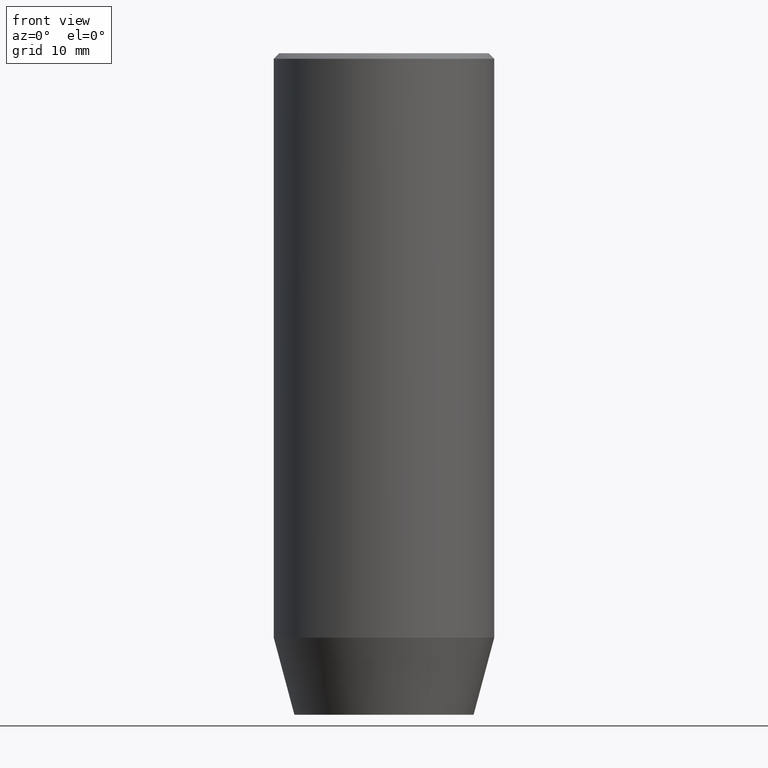
[diagram: clean part render]
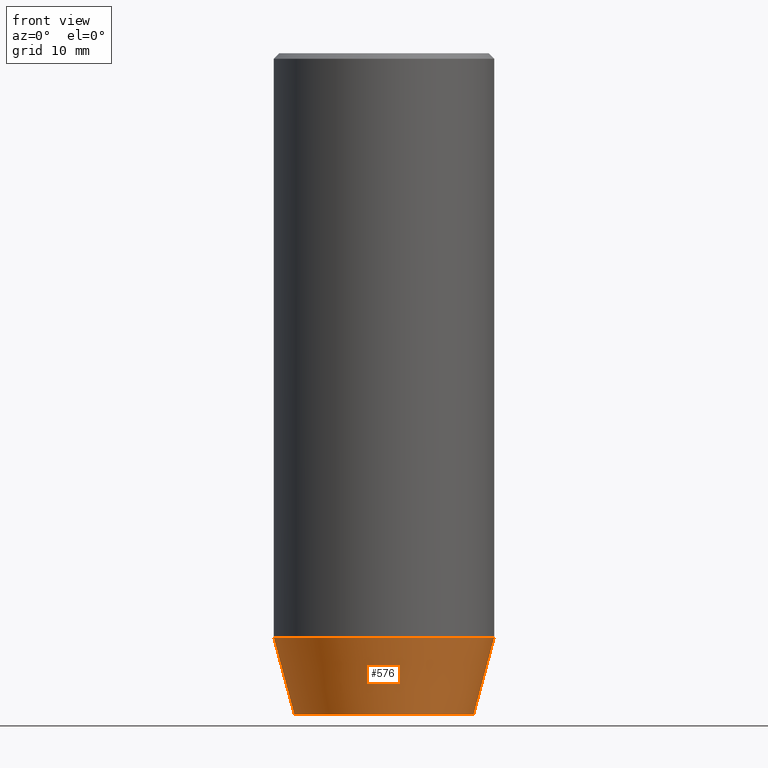
[diagram: same view with one face highlighted and labeled with its STEP entity id]
A machine part, front view. The second image highlights one B-rep face of the part: STEP entity #576.
In plain terms, the highlighted conical surface has half-angle 15 deg.
Its self-contained STEP definition (entity closure, byte-faithful):
#35 = CARTESIAN_POINT ( 'NONE',  ( -10.00000000000000000, 1.224646799147353256E-15, -53.00000000000000000 ) ) ;
#36 = ORIENTED_EDGE ( 'NONE', *, *, #498, .T. ) ;
#47 = DIRECTION ( 'NONE',  ( -0.2588190451025213501, 3.169619151431772337E-17, 0.9659258262890680902 ) ) ;
#51 = DIRECTION ( 'NONE',  ( -0.000000000000000000, -0.000000000000000000, 1.000000000000000000 ) ) ;
#55 = DIRECTION ( 'NONE',  ( 1.000000000000000000, 0.000000000000000000, 0.000000000000000000 ) ) ;
#65 = VERTEX_POINT ( 'NONE', #271 ) ;
#66 = FACE_OUTER_BOUND ( 'NONE', #504, .T. ) ;
#92 = ORIENTED_EDGE ( 'NONE', *, *, #382, .F. ) ;
#154 = VECTOR ( 'NONE', #47, 1000.000000000000000 ) ;
#164 = VECTOR ( 'NONE', #525, 1000.000000000000000 ) ;
#181 = CIRCLE ( 'NONE', #429, 10.00000000000000000 ) ;
#193 = VERTEX_POINT ( 'NONE', #552 ) ;
#208 = DIRECTION ( 'NONE',  ( -0.000000000000000000, -0.000000000000000000, 1.000000000000000000 ) ) ;
#259 = CIRCLE ( 'NONE', #460, 8.124355652982137244 ) ;
#271 = CARTESIAN_POINT ( 'NONE',  ( 8.124355652982137244, 0.000000000000000000, -60.00000000000000000 ) ) ;
#294 = AXIS2_PLACEMENT_3D ( 'NONE', #316, #51, #55 ) ;
#315 = CARTESIAN_POINT ( 'NONE',  ( -10.00000000000000000, 1.224646799147353256E-15, -53.00000000000000000 ) ) ;
#316 = CARTESIAN_POINT ( 'NONE',  ( 0.000000000000000000, 0.000000000000000000, -53.00000000000000000 ) ) ;
#323 = EDGE_CURVE ( 'NONE', #393, #193, #181, .T. ) ;
#340 = CARTESIAN_POINT ( 'NONE',  ( 0.000000000000000000, 0.000000000000000000, -53.00000000000000000 ) ) ;
#359 = LINE ( 'NONE', #315, #154 ) ;
#382 = EDGE_CURVE ( 'NONE', #471, #393, #359, .T. ) ;
#392 = EDGE_CURVE ( 'NONE', #65, #193, #488, .T. ) ;
#393 = VERTEX_POINT ( 'NONE', #35 ) ;
#412 = CARTESIAN_POINT ( 'NONE',  ( 0.000000000000000000, 0.000000000000000000, -60.00000000000000000 ) ) ;
#429 = AXIS2_PLACEMENT_3D ( 'NONE', #340, #208, #513 ) ;
#447 = DIRECTION ( 'NONE',  ( 1.000000000000000000, 0.000000000000000000, 0.000000000000000000 ) ) ;
#460 = AXIS2_PLACEMENT_3D ( 'NONE', #412, #564, #447 ) ;
#461 = ORIENTED_EDGE ( 'NONE', *, *, #392, .T. ) ;
#462 = CARTESIAN_POINT ( 'NONE',  ( -8.124355652982137244, 1.109796706851640556E-15, -60.00000000000000000 ) ) ;
#471 = VERTEX_POINT ( 'NONE', #462 ) ;
#488 = LINE ( 'NONE', #578, #164 ) ;
#492 = CONICAL_SURFACE ( 'NONE', #294, 10.00000000000000000, 0.2617993877991500740 ) ;
#498 = EDGE_CURVE ( 'NONE', #471, #65, #259, .T. ) ;
#501 = ORIENTED_EDGE ( 'NONE', *, *, #323, .F. ) ;
#504 = EDGE_LOOP ( 'NONE', ( #92, #36, #461, #501 ) ) ;
#513 = DIRECTION ( 'NONE',  ( 1.000000000000000000, 0.000000000000000000, 0.000000000000000000 ) ) ;
#525 = DIRECTION ( 'NONE',  ( 0.2588190451025213501, 0.000000000000000000, 0.9659258262890680902 ) ) ;
#552 = CARTESIAN_POINT ( 'NONE',  ( 10.00000000000000000, 0.000000000000000000, -53.00000000000000000 ) ) ;
#564 = DIRECTION ( 'NONE',  ( -0.000000000000000000, -0.000000000000000000, 1.000000000000000000 ) ) ;
#576 = ADVANCED_FACE ( 'NONE', ( #66 ), #492, .T. ) ;
#578 = CARTESIAN_POINT ( 'NONE',  ( 10.00000000000000000, 0.000000000000000000, -53.00000000000000000 ) ) ;